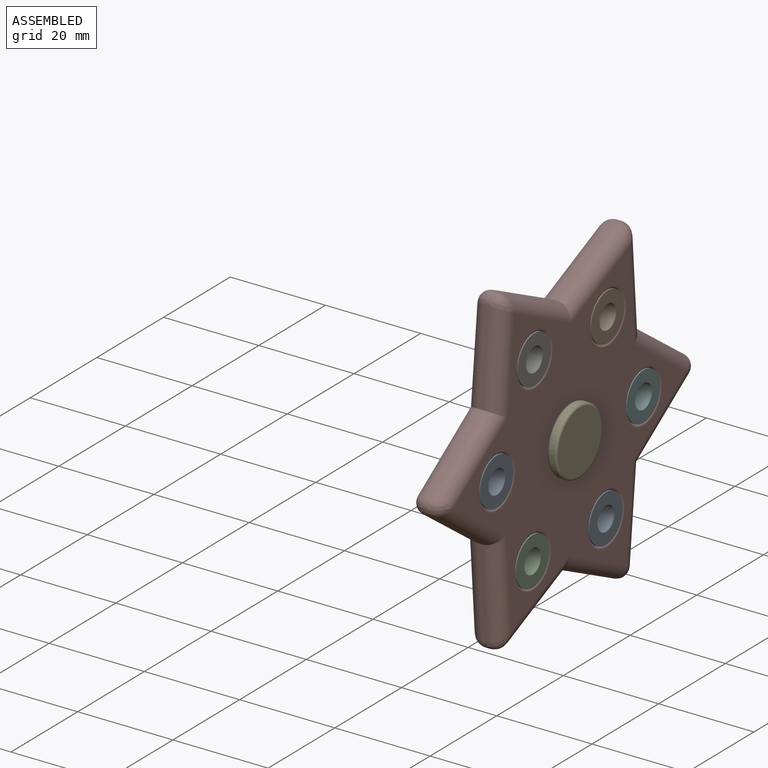
[diagram: assembled view]
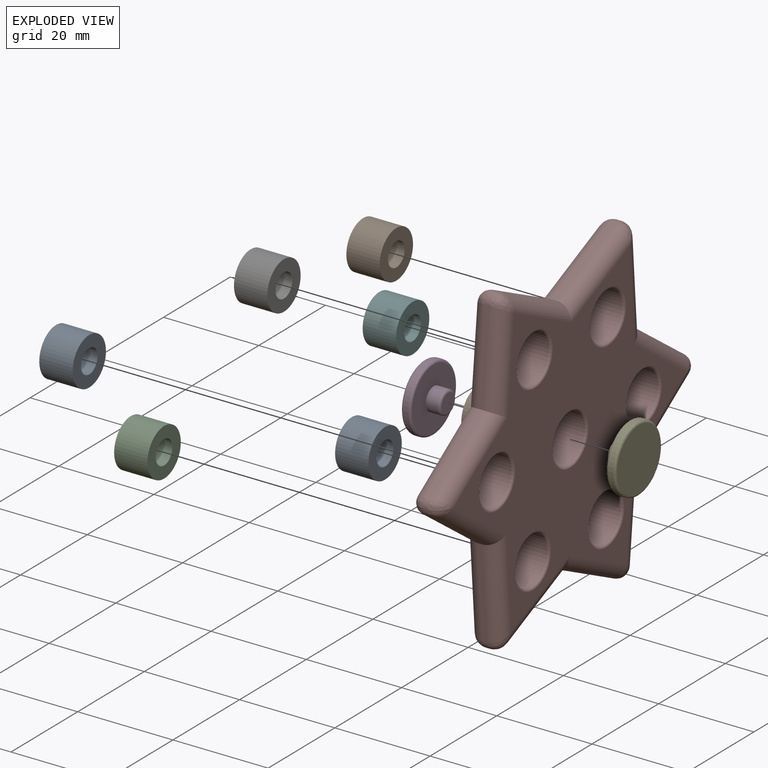
[diagram: exploded view]
GUIDED TOUR — MATED ASSEMBLY (Onshape document 38da898436f4ea99c2fea134, AutoMate assembly 38da898436f4ea99c2fea134_e0652d350cd0124486d0bb32_91c1b1e1eb7aa2c54d696de5_default)

This assembly has 10 components, labeled P0..P9 below (a component is one placed occurrence of a part; the same part can appear more than once), held together by 9 mates. A mate is a constraint between two components; its type names the relative motion it leaves free:
  FASTENED — locks the two components together rigidly (no relative motion),
  REVOLUTE — leaves rotation about the listed axis free (a hinge).
Axis/direction vectors are unit vectors and 'through' points are millimeter coordinates, both in the assembly's world frame.

MATES
  1. FASTENED "Fastened 6": P8 <-> P7, direction (-1.000, 0.000, 0.000) through (2.33, 8.03, -15.43) mm
  2. FASTENED "Fastened 5": P7 <-> P5, direction (-1.000, 0.000, 0.000) through (2.33, 19.29, 3.47) mm
  3. FASTENED "Fastened 1": P0 <-> P7, direction (-1.000, 0.000, 0.000) through (2.33, -24.71, 4.07) mm
  4. FASTENED "Fastened 2": P7 <-> P2, direction (-1.000, 0.000, 0.000) through (2.33, -13.97, -15.13) mm
  5. FASTENED "Fastened 8": P4 <-> P1, direction (-1.000, 0.000, 0.000) through (9.33, -2.71, 3.77) mm
  6. REVOLUTE "Revolute 1": P1 <-> P7, axis (-1.000, 0.000, 0.000) through (2.33, -2.71, 3.77) mm
  7. FASTENED "Fastened 4": P9 <-> P7, direction (-1.000, 0.000, 0.000) through (2.33, 8.55, 22.67) mm
  8. FASTENED "Fastened 3": P6 <-> P7, direction (-1.000, 0.000, 0.000) through (2.33, -13.45, 22.97) mm
  9. FASTENED "Fastened 7": P3 <-> P1, direction (1.000, 0.000, 0.000) through (2.33, -2.71, 3.77) mm

ASSEMBLY ORDER
  1. P7 — the base component [order heuristic]
  2. P0 [order heuristic]
  3. P1 [order heuristic]
  4. P2 [order heuristic]
  5. P5 [order heuristic]
  6. P6 [order heuristic]
  7. P8 [order heuristic]
  8. P9 [order heuristic]
  9. P3 [order heuristic]
  10. P4 [order heuristic]
Order-tag legend:
  [order heuristic] — this assembly is geometrically interlocked (no collision-free removal order exists), so components are listed in mate-graph order; insertion feasibility is not verified.

Of the 10 components, 7 carry the full construction recipe — the FeatureScript program that regenerates the part's solid from scratch; the rest are supplied as boundary geometry only.
Each toured component is shown spotlighted twice — in the assembled view, then in the exploded view, where a leader line traces a displaced component back to its assembled socket (saturated green if recipe-attached, orange if geometry-only; every other component desaturated gray) — followed by its recipe or geometry summary and the mates that hold it.
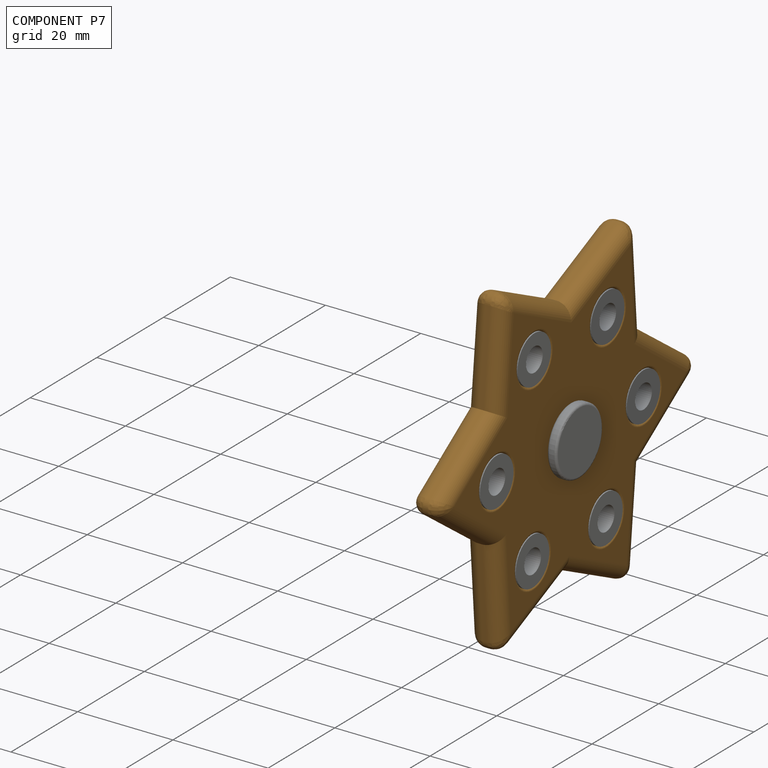
[diagram: component P7 — assembled]
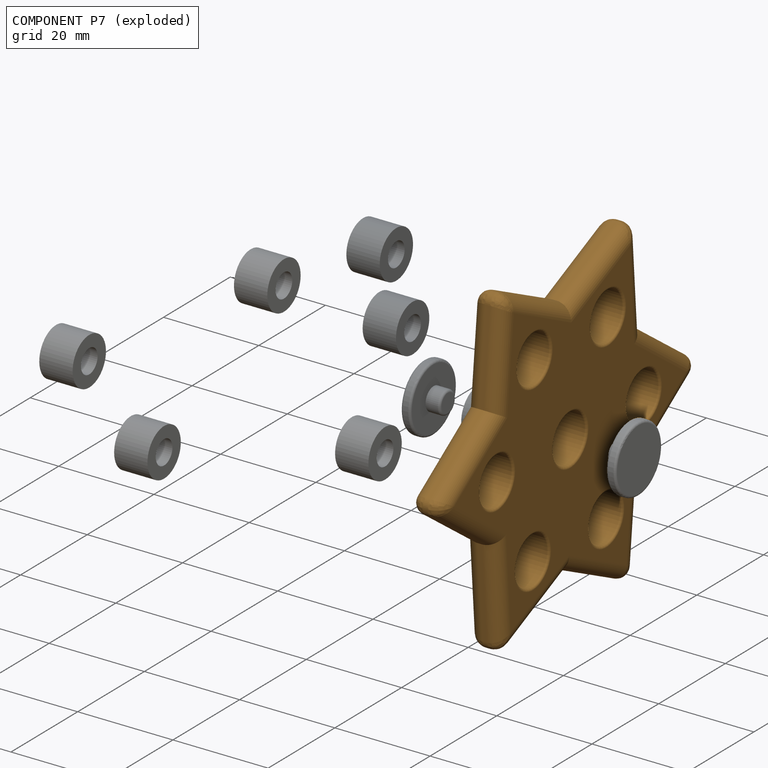
[diagram: component P7 — exploded]
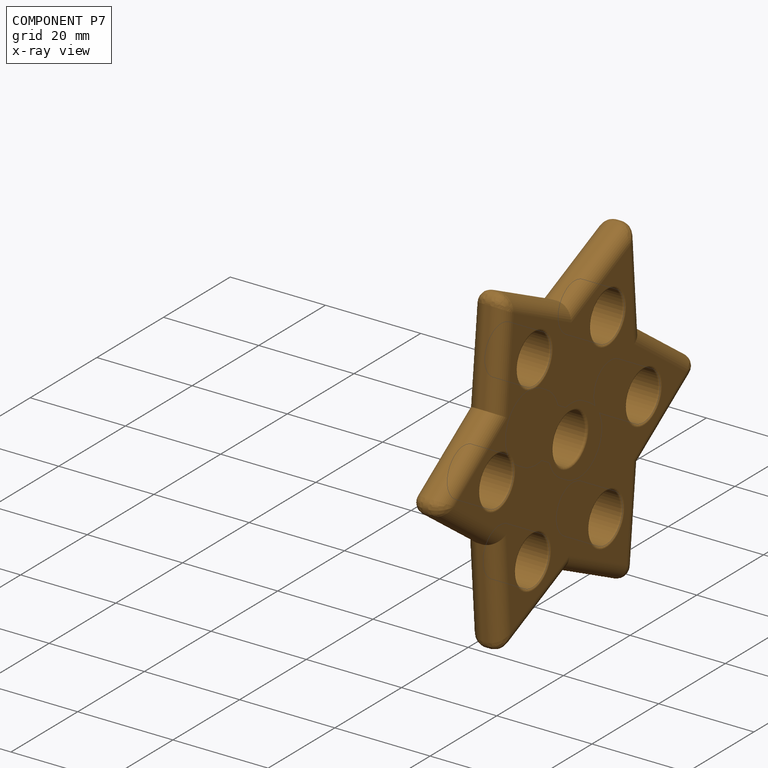
[diagram: component P7 — x-ray view]
COMPONENT P7 — geometry summary (no construction recipe available for this part):
  bounding box: 80.0 x 69.3 x 7.0 mm
  B-rep topology: 1 solid, 77 faces, 338 edges
  volume: 16340 mm^3 (42% of its bounding box)
  symmetry: 6-fold rotationally symmetric about the x axis; 2-fold rotationally symmetric about the y axis; 2-fold rotationally symmetric about the z axis; mirror-symmetric across its x mid-plane, y mid-plane, z mid-plane
Held by: FASTENED mate "Fastened 6" to P8; FASTENED mate "Fastened 5" to P5; FASTENED mate "Fastened 1" to P0; FASTENED mate "Fastened 2" to P2; REVOLUTE mate "Revolute 1" to P1; FASTENED mate "Fastened 4" to P9; FASTENED mate "Fastened 3" to P6.
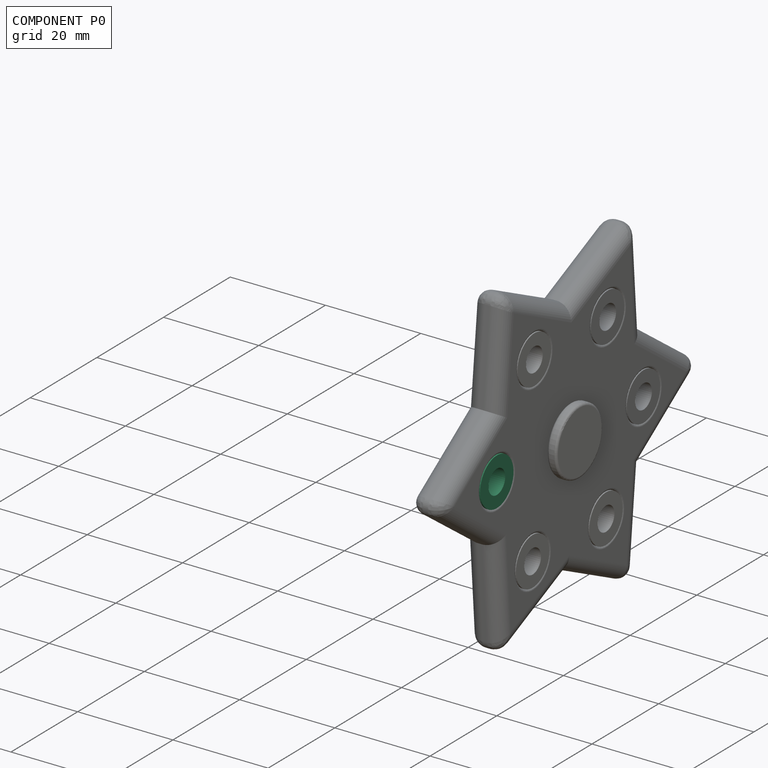
[diagram: component P0 — assembled]
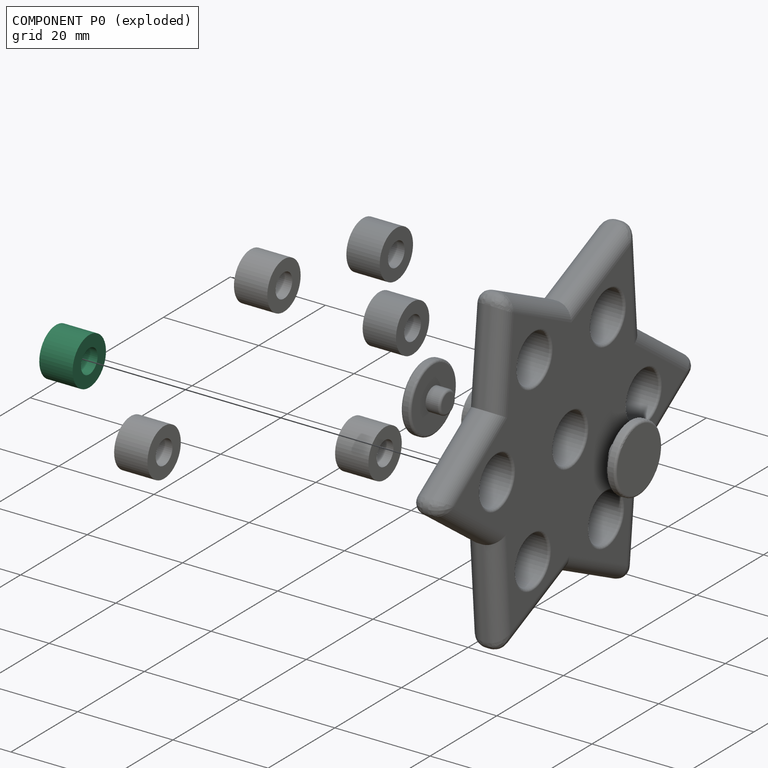
[diagram: component P0 — exploded]
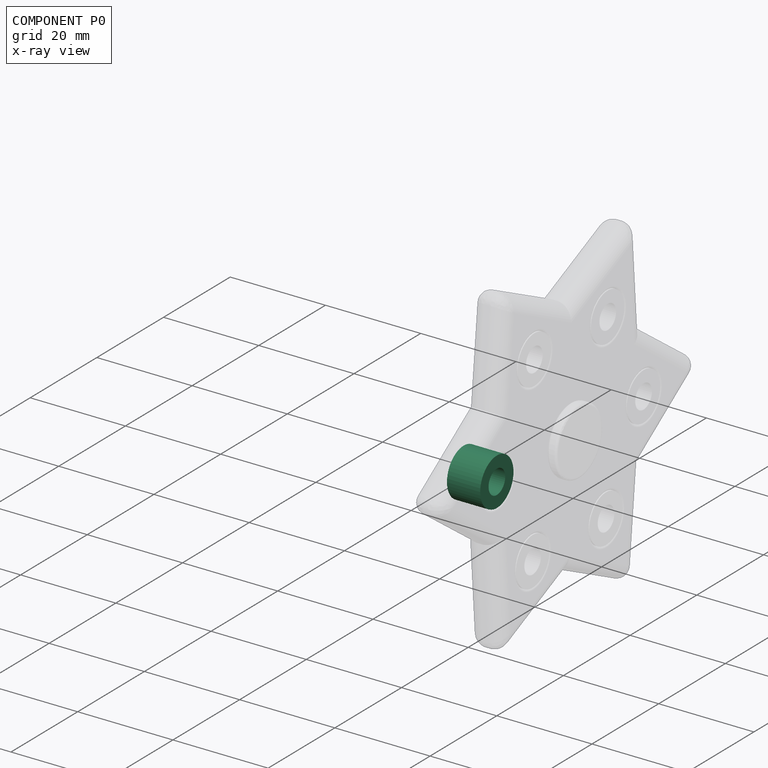
[diagram: component P0 — x-ray view]
COMPONENT P0 — recipe-attached (CADFS 00753583, mesh-verified: the recipe's output STEP matches this component's geometry to below the mesh-comparison resolution (tessellation chordal tolerance ~0.0236 mm)).
Held by: FASTENED mate "Fastened 1" to P7.
Construction recipe (FeatureScript — the CAD program that rebuilds this solid; sketch coordinates are in the units given by the * unit suffixes, e.g. mm):

FeatureScript 1511;
import(path : "onshape/std/geometry.fs", version : "1511.0");
import(path : "onshape/std/common.fs", version : "1511.0");
const mm = millimeter;
const VERTEX = EntityType.VERTEX;
const EDGE = EntityType.EDGE;
const FACE = EntityType.FACE;
const BODY = EntityType.BODY;
function v(x, y){return vector(x, y);}
function OD(order){return orderDisambiguation(order);}
function OSD(set){return originalSetDisambiguation(set);}
function TD(topology){return topologyDisambiguation(topology);}
function TDD(query){return trueDependencyDisambiguation(query);}
function sQuery(a, b, c) {return sketchEntityQuery(a, b, c);}

annotation { "Feature Type Name" : "Feature", "Feature Type Description" : "" }
export const myFeature = defineFeature(function(context is Context, id is Id, definition is map)
    precondition{}
    {
        {
            var Q0;
            Q0=qCreatedBy(makeId("Right.planeOp"),FACE);
            var sketch = newSketch(context, id + "F0", { "sketchPlane" : qUnion([Q0])});
            skCircle(sketch, "E0", {"center": v(0, 0) * mm, "radius": 5 * mm});
            skCircle(sketch, "E1", {"center": v(0, 0) * mm, "radius": 2.5 * mm});
            skSolve(sketch);
        }
        {
            var Q0;
            Q0=makeQuery(id+"F0.imprint","IMPRINT",FACE,{"disambiguationData":[TD([[makeQuery(id+"F0.imprint","IMPRINT",EDGE,{"derivedFrom":sQuery(id+"F0.wireOp",EDGE,"E0")}),1.0]])]});
            extrude(context, id + "F1", {"entities" : qUnion([Q0]), "depth" : 7 * mm, "offsetDistance" : 25.4 * mm});
        }
    });
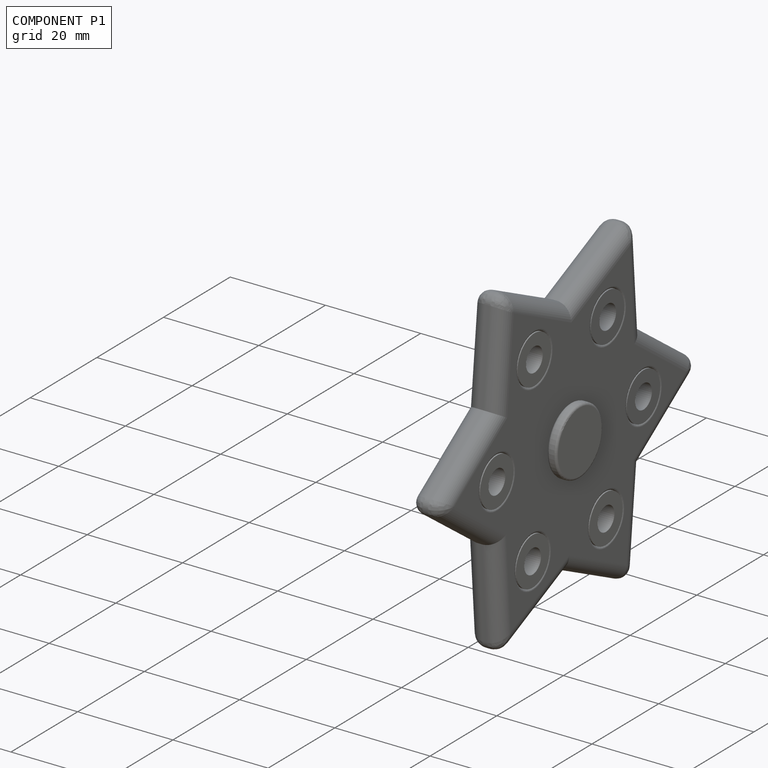
[diagram: component P1 — assembled]
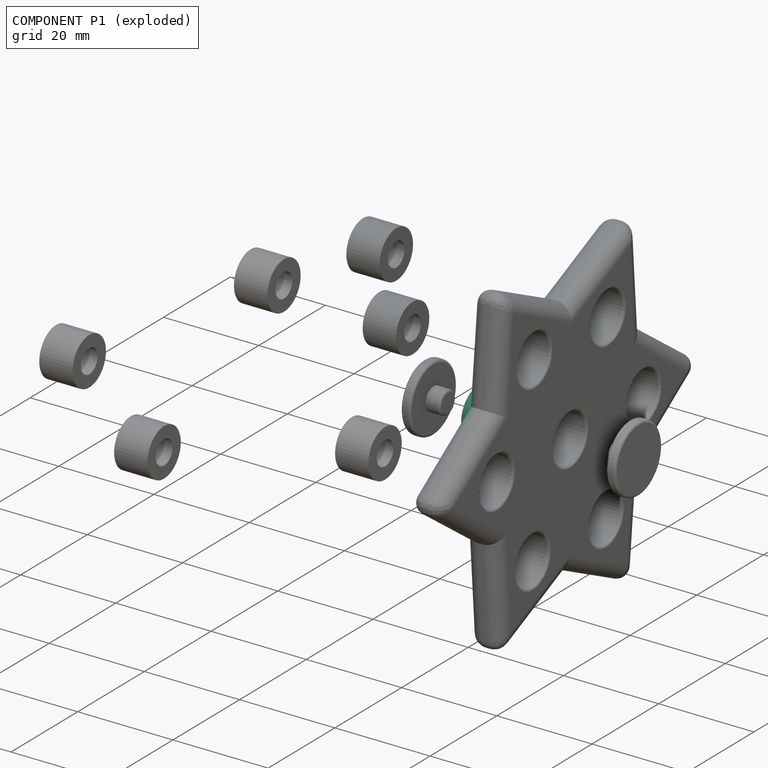
[diagram: component P1 — exploded]
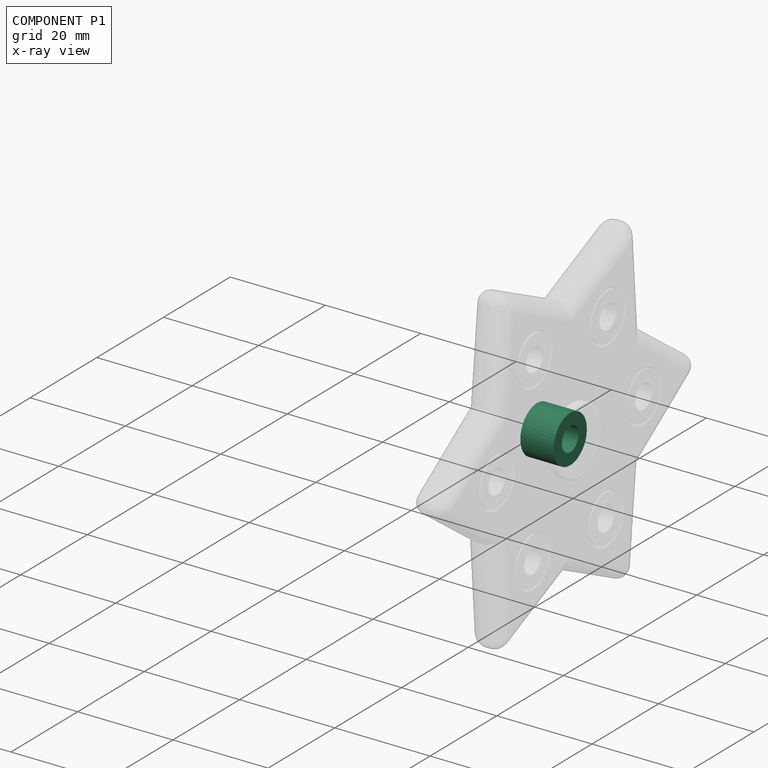
[diagram: component P1 — x-ray view]
COMPONENT P1 — same part as P0 (CADFS 00753583); its construction recipe is shown at P0.
Held by: FASTENED mate "Fastened 8" to P4; REVOLUTE mate "Revolute 1" to P7; FASTENED mate "Fastened 7" to P3.
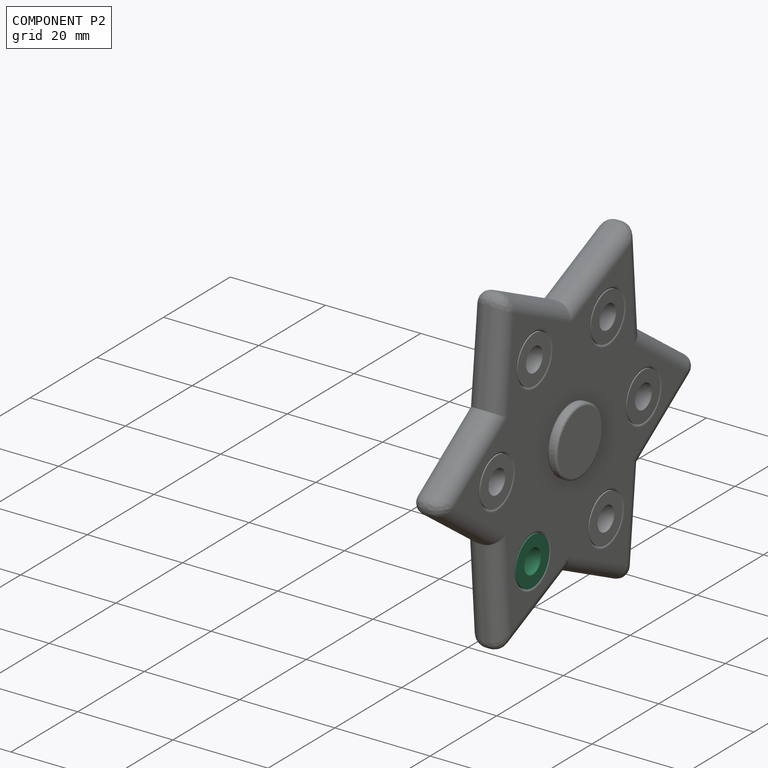
[diagram: component P2 — assembled]
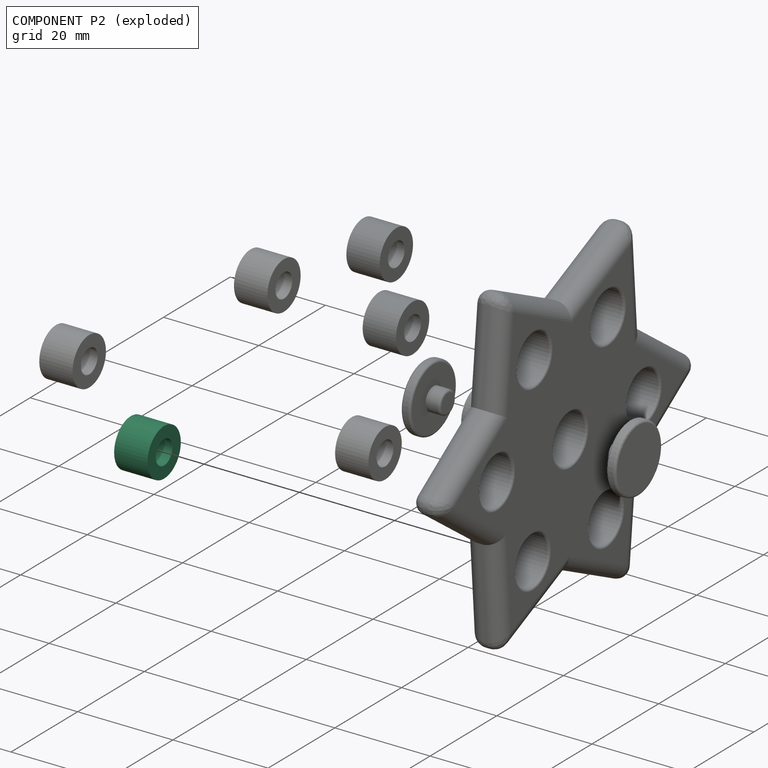
[diagram: component P2 — exploded]
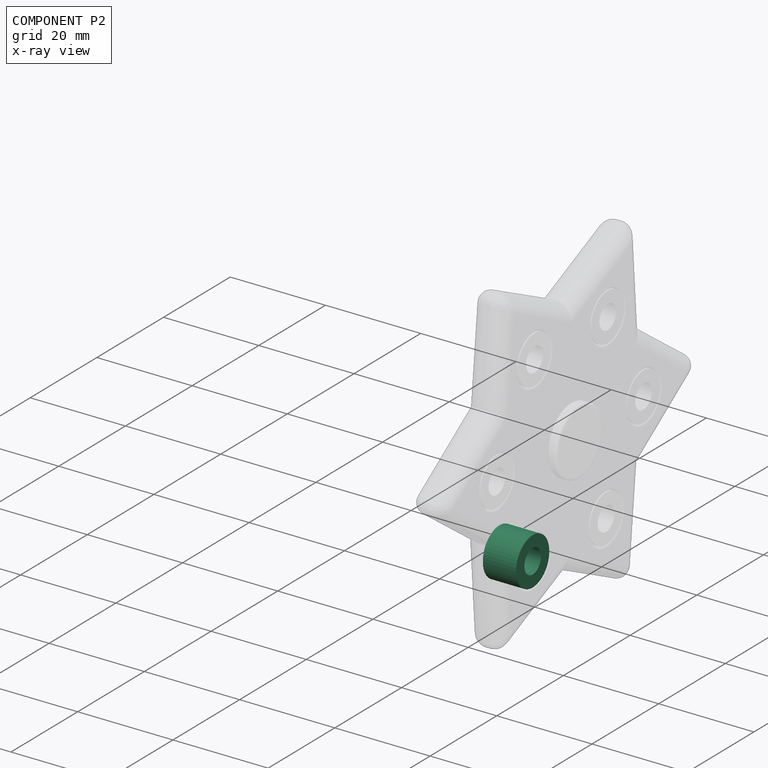
[diagram: component P2 — x-ray view]
COMPONENT P2 — same part as P0 (CADFS 00753583); its construction recipe is shown at P0.
Held by: FASTENED mate "Fastened 2" to P7.
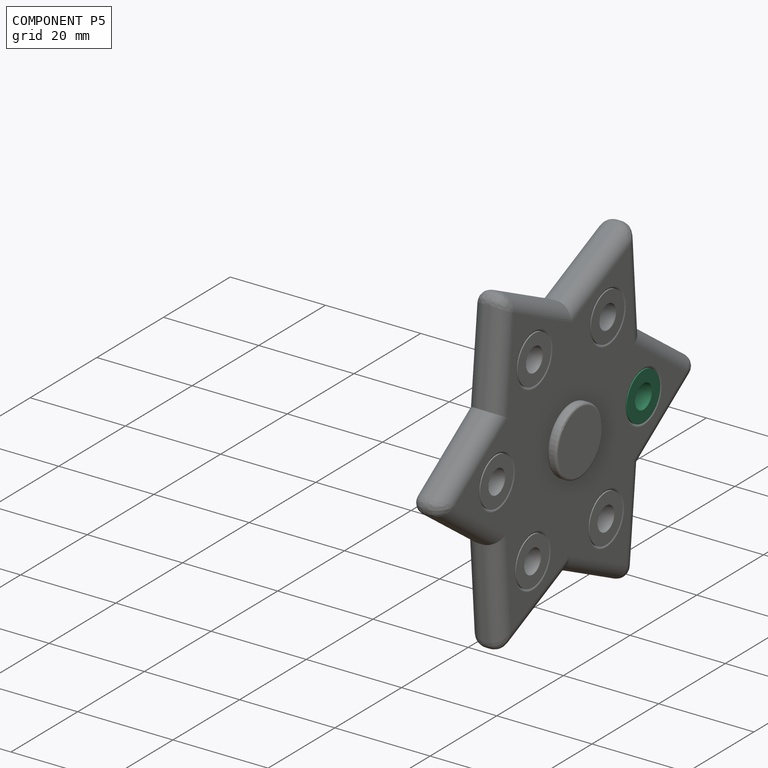
[diagram: component P5 — assembled]
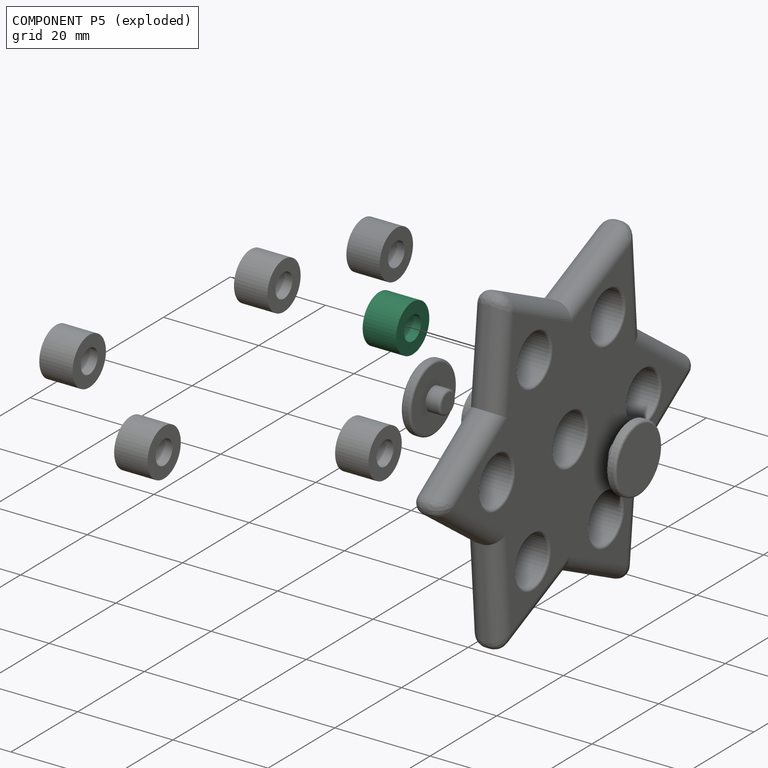
[diagram: component P5 — exploded]
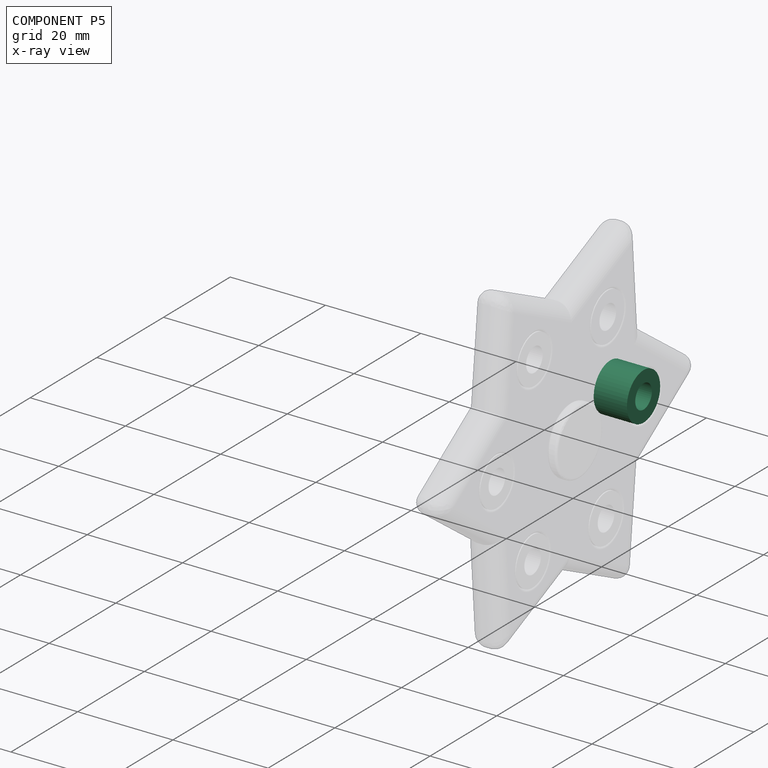
[diagram: component P5 — x-ray view]
COMPONENT P5 — same part as P0 (CADFS 00753583); its construction recipe is shown at P0.
Held by: FASTENED mate "Fastened 5" to P7.
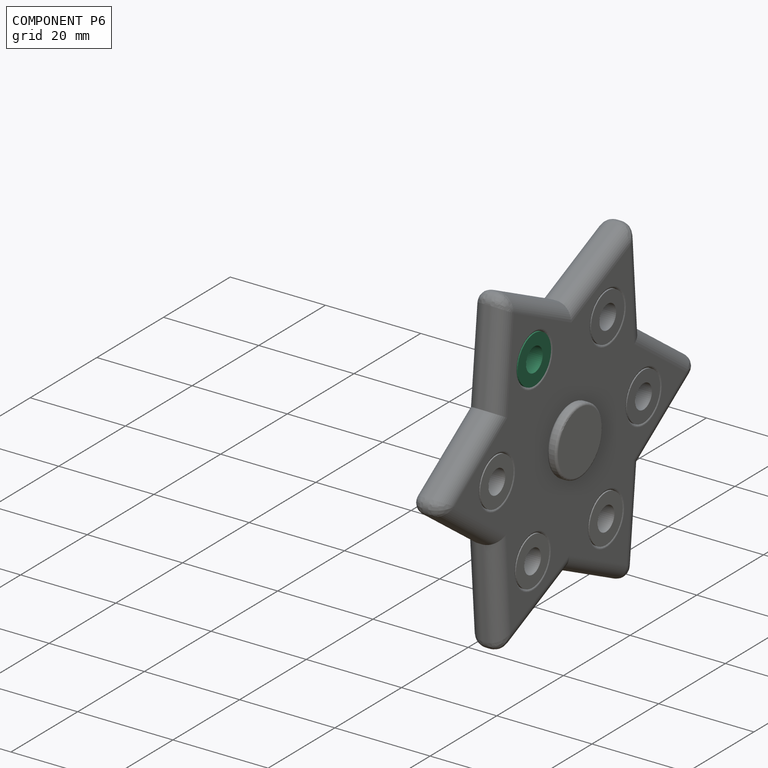
[diagram: component P6 — assembled]
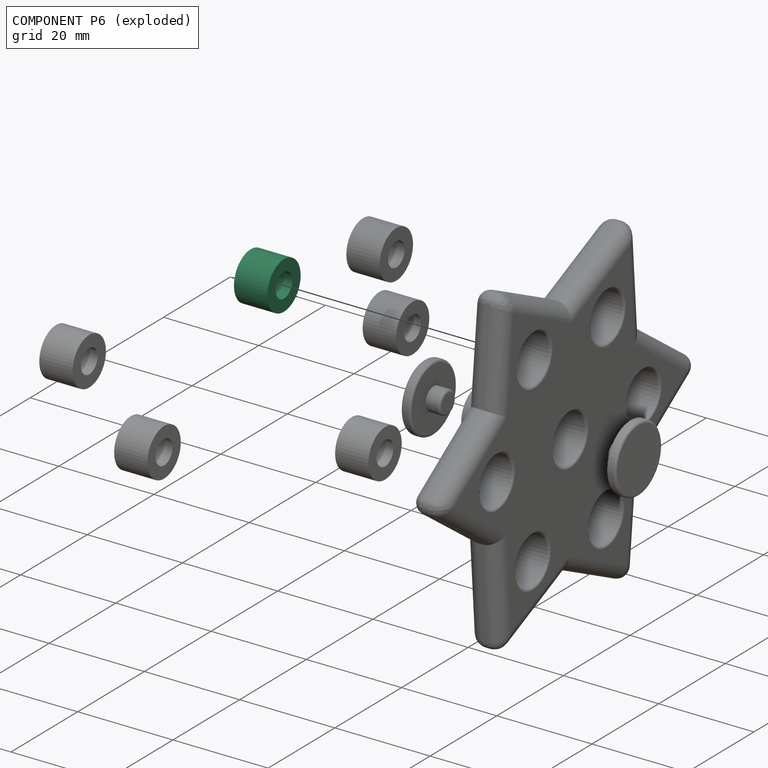
[diagram: component P6 — exploded]
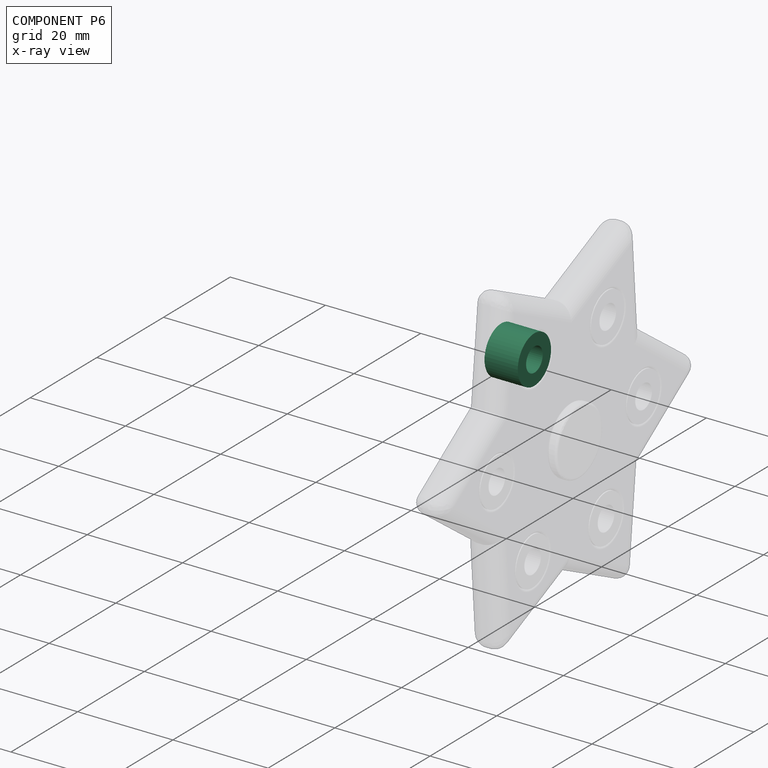
[diagram: component P6 — x-ray view]
COMPONENT P6 — same part as P0 (CADFS 00753583); its construction recipe is shown at P0.
Held by: FASTENED mate "Fastened 3" to P7.
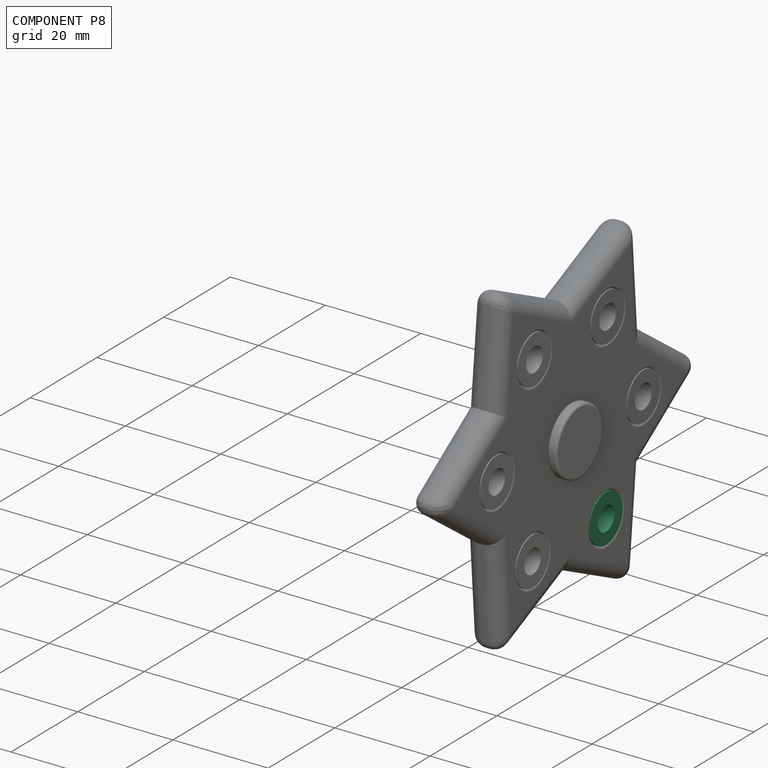
[diagram: component P8 — assembled]
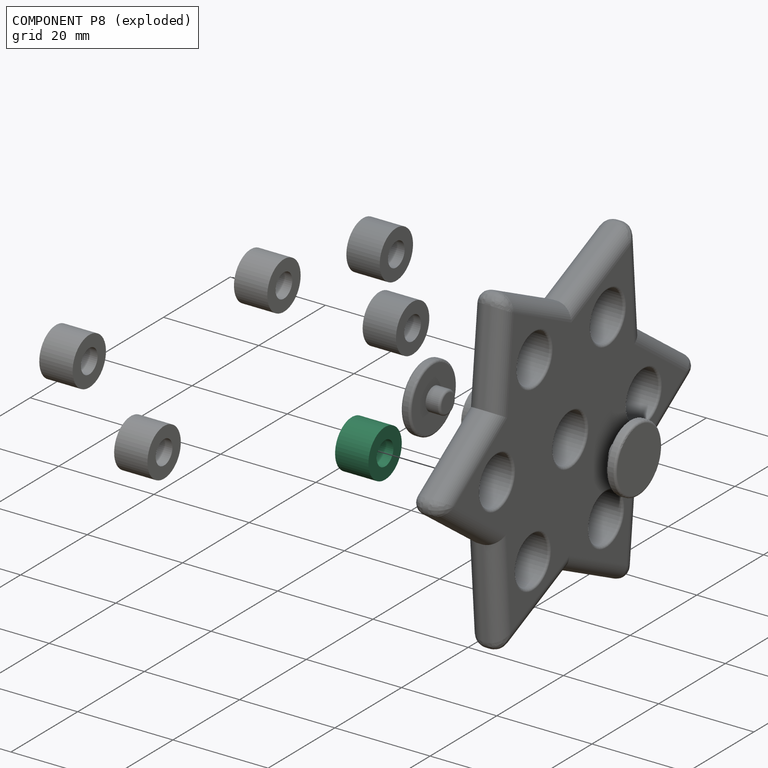
[diagram: component P8 — exploded]
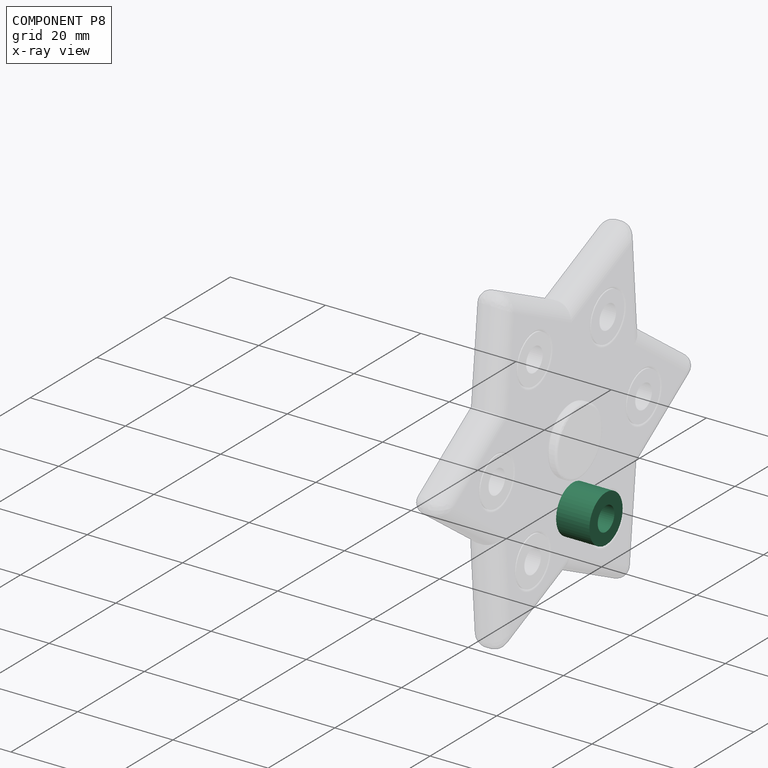
[diagram: component P8 — x-ray view]
COMPONENT P8 — same part as P0 (CADFS 00753583); its construction recipe is shown at P0.
Held by: FASTENED mate "Fastened 6" to P7.
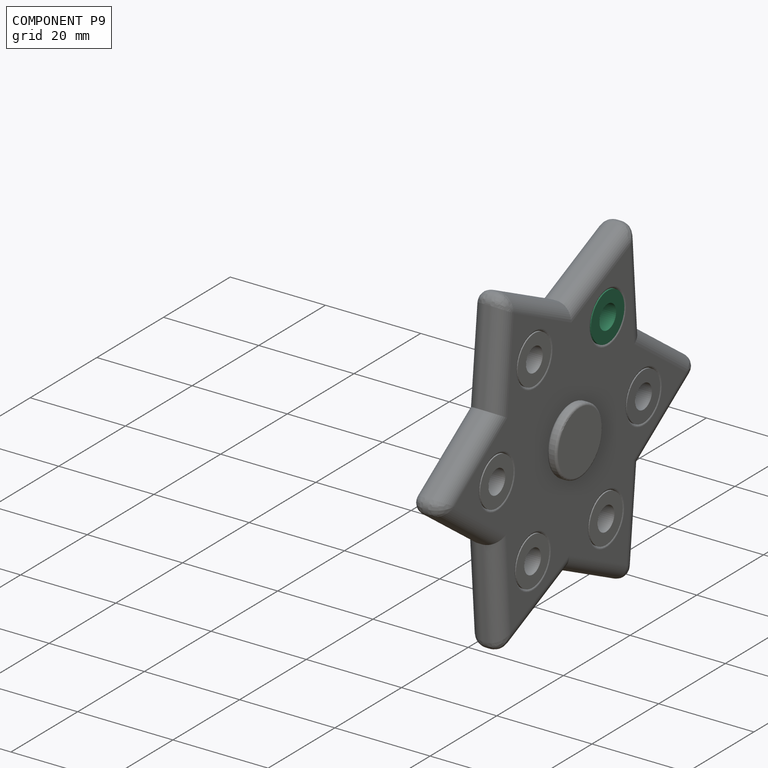
[diagram: component P9 — assembled]
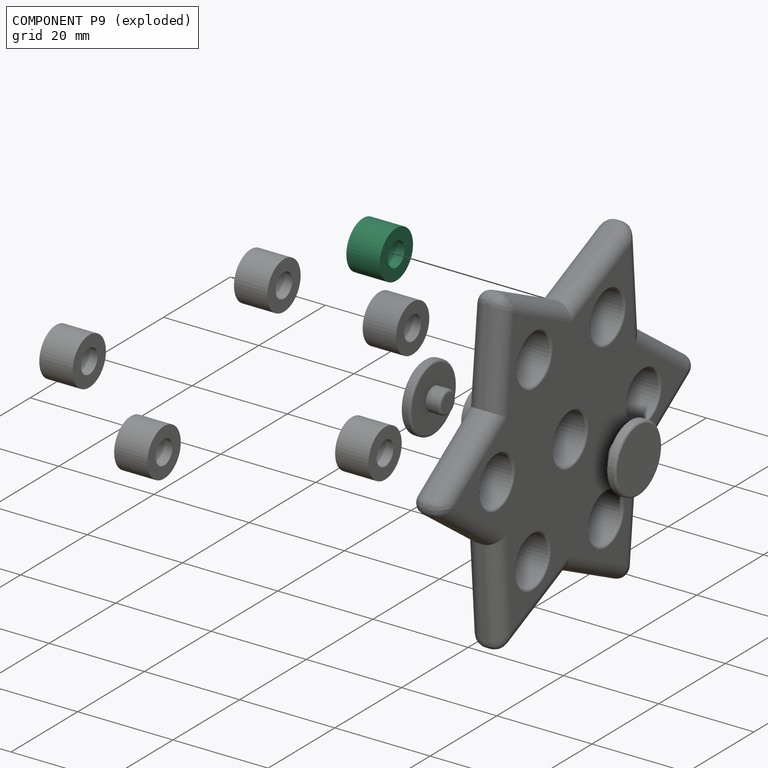
[diagram: component P9 — exploded]
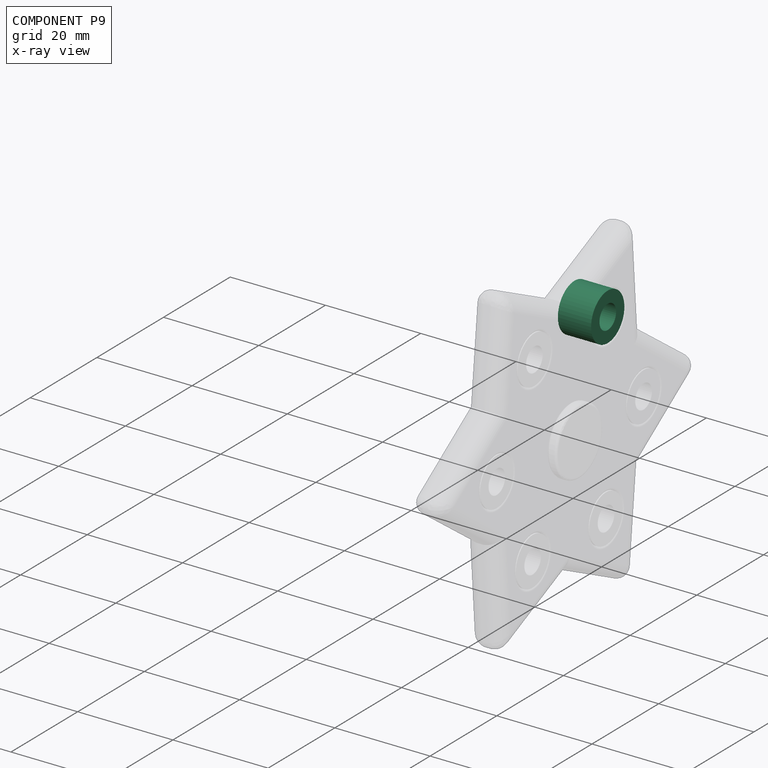
[diagram: component P9 — x-ray view]
COMPONENT P9 — same part as P0 (CADFS 00753583); its construction recipe is shown at P0.
Held by: FASTENED mate "Fastened 4" to P7.
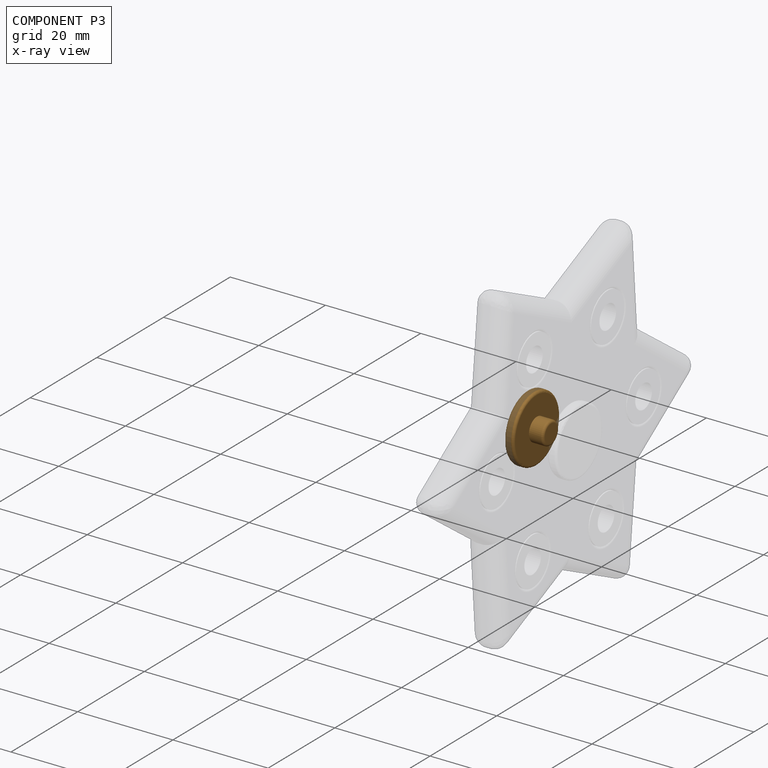
[diagram: component P3 — x-ray view]
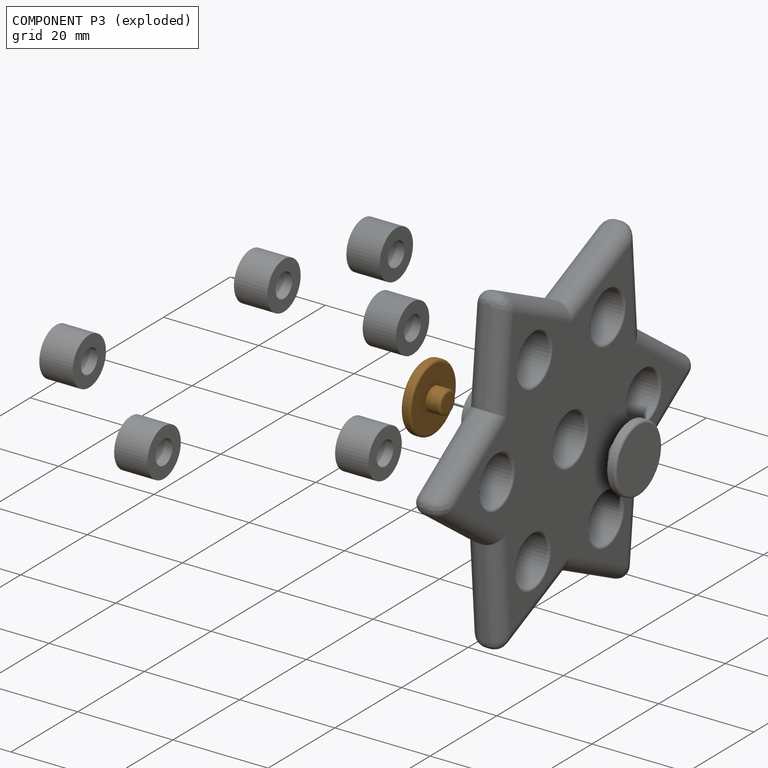
[diagram: component P3 — exploded]
COMPONENT P3 — geometry summary (no construction recipe available for this part):
  bounding box: 15.2 x 15.2 x 5.0 mm
  B-rep topology: 1 solid, 8 faces, 26 edges
  volume: 357 mm^3 (31% of its bounding box)
  symmetry: revolution-symmetric about the x axis through its bounding-box center; mirror-symmetric across its y mid-plane, z mid-plane
Held by: FASTENED mate "Fastened 7" to P1.
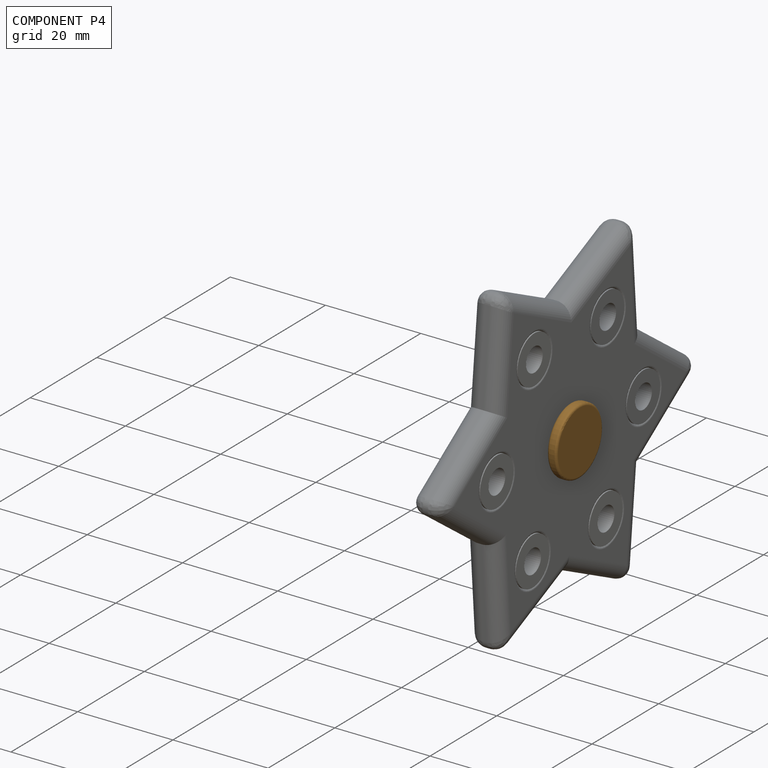
[diagram: component P4 — assembled]
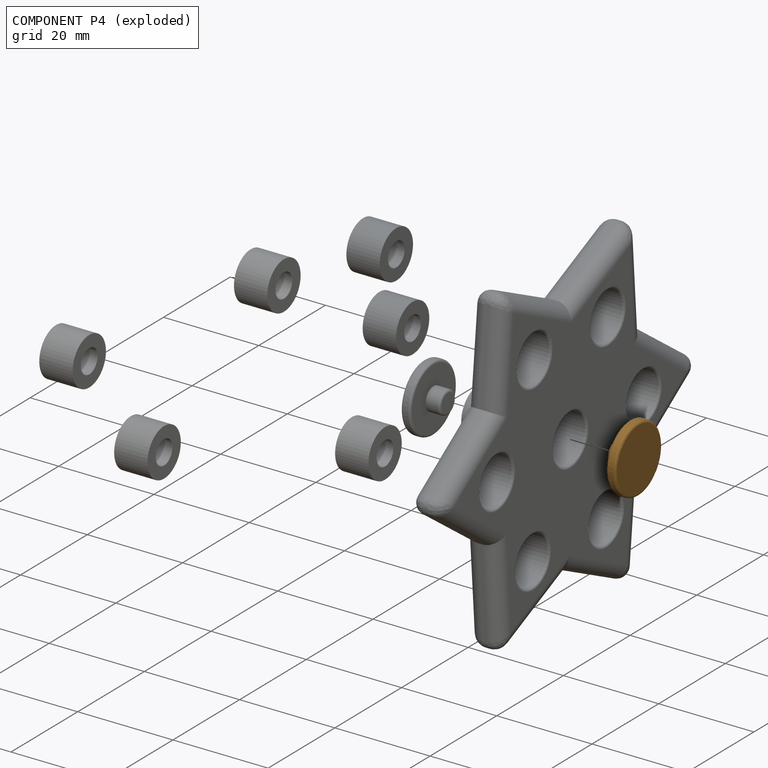
[diagram: component P4 — exploded]
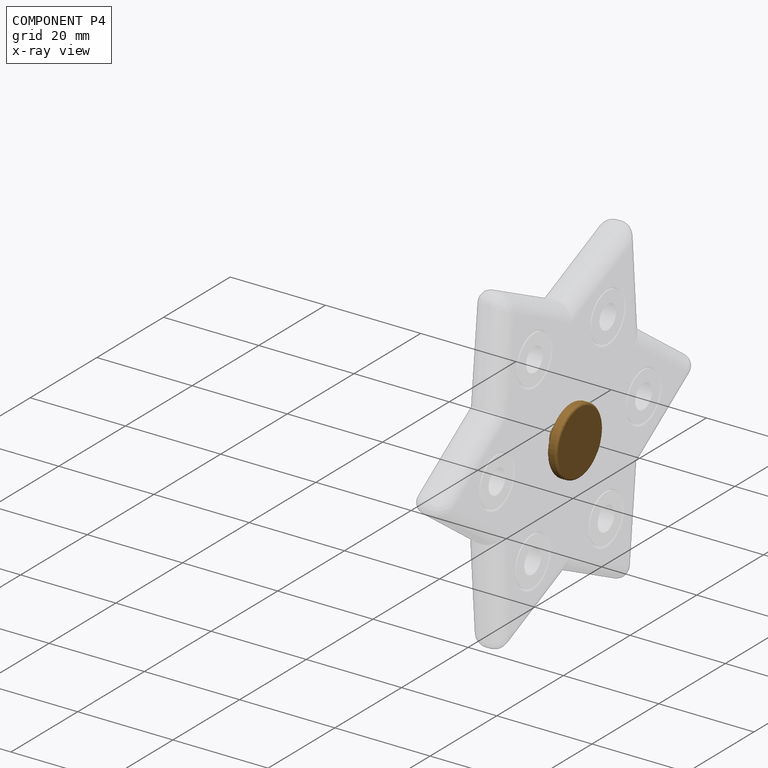
[diagram: component P4 — x-ray view]
COMPONENT P4 — geometry summary (no construction recipe available for this part):
  bounding box: 15.2 x 15.2 x 5.0 mm
  B-rep topology: 1 solid, 8 faces, 26 edges
  volume: 357 mm^3 (31% of its bounding box)
  symmetry: revolution-symmetric about the x axis through its bounding-box center; mirror-symmetric across its y mid-plane, z mid-plane
Held by: FASTENED mate "Fastened 8" to P1.
PROVENANCE & LICENSES
Assembly (occurrences, transforms, mates, per-part STEP geometry): AutoMate dataset, Zenodo record 7776208, CC0.
Construction recipes: CADFS (HuggingFace VladPyatov/CADFS, CC-BY-4.0, layered over the ABC dataset), FeatureScript reconstruction programs keyed by ABC model id.
Join: ABC meta listings map ABC model id -> Onshape documentId; within a shared document, parts are matched by geometric signature (bounding-box dims + volume at 0.1% relative tolerance, exact B-rep face/solid counts).
Verification: 7 of this assembly's 10 components carry a recipe attachment, and every attachment is mesh-verified: the CADFS STEP and the AutoMate member STEP were compared as meshes in their shared local frame (symmetric sampled-point-to-mesh distance); worst across the 7 attachments: below the mesh-comparison resolution (tessellation chordal tolerance ~0.0236 mm) on a 16 mm part.
Renders: orthographic iso camera (az 35 / el 25); the floor grid conveys scale (grid pitch printed in each image; no ruler). In the exploded view each component is displaced by its stored offset vector: the offsets alone carry the explosion direction (mate normal/axis signs are not orientation cues and do not encode it), and separation distances are assigned per mate-chain, not proportionally to assembly-order depth.
